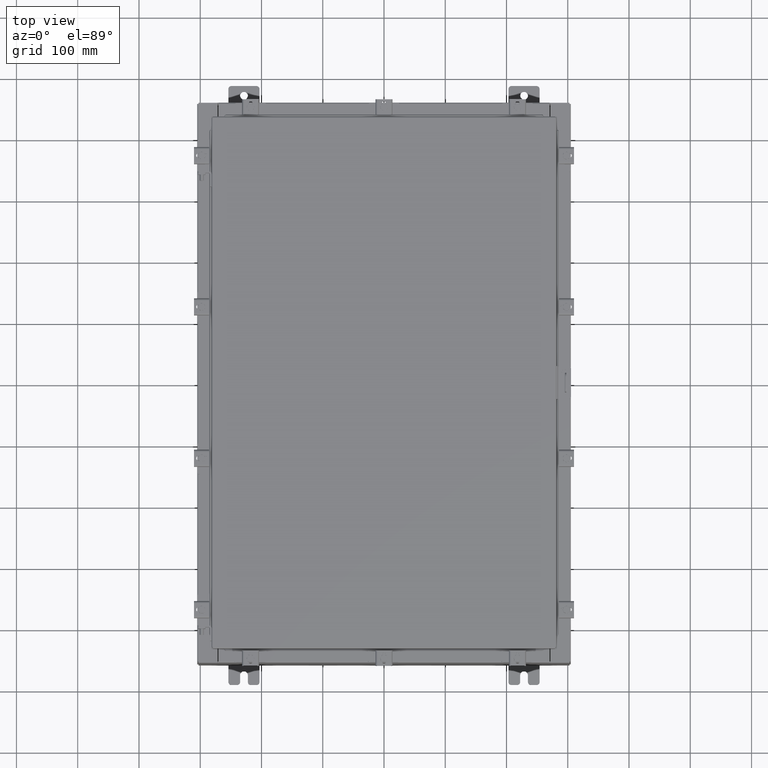
[diagram: clean part render]
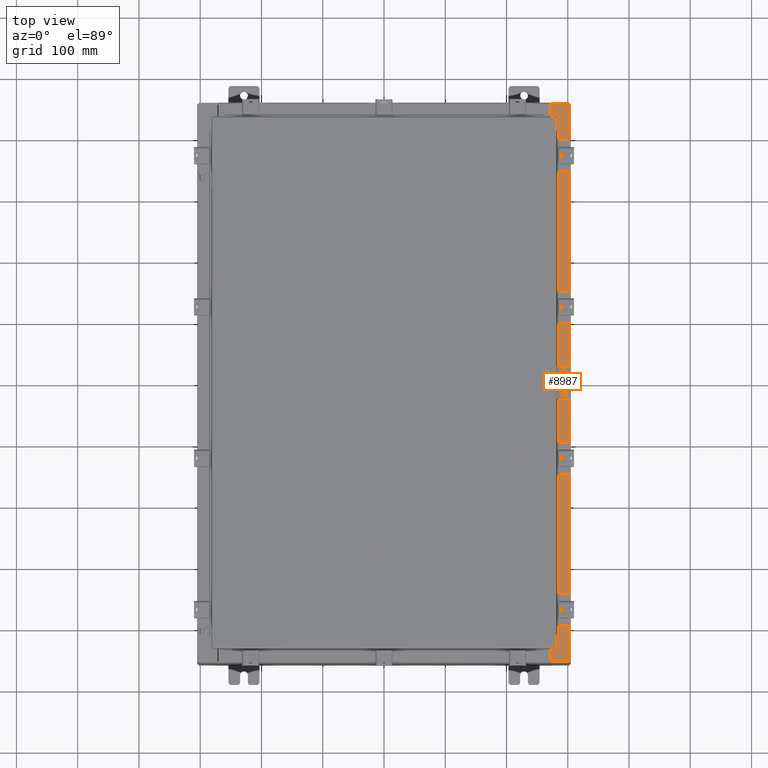
[diagram: same view with one face highlighted and labeled with its STEP entity id]
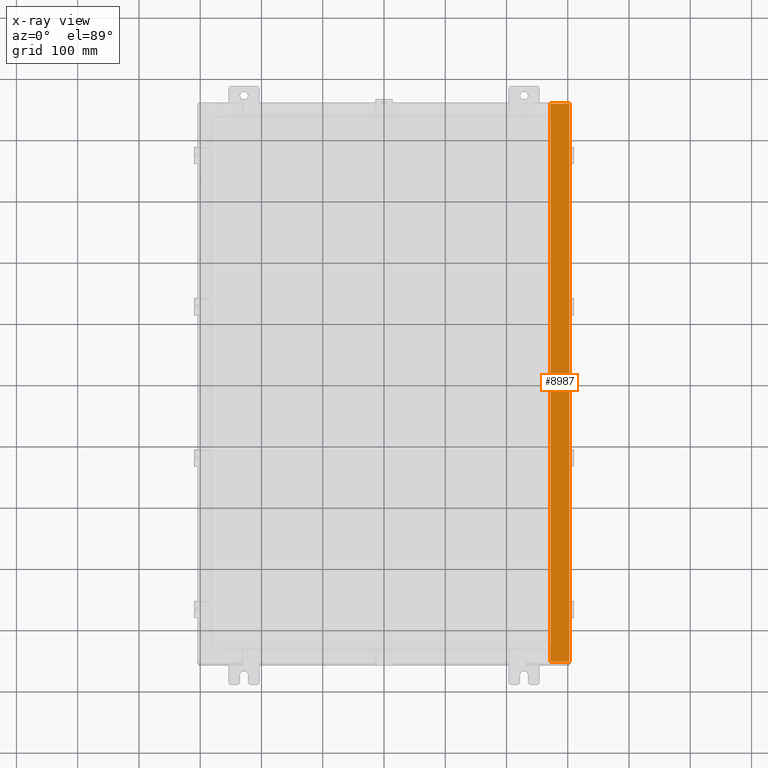
[diagram: x-ray of the same camera — body ghosted, the highlighted face saturated]
A machine part, top view. The second image highlights one B-rep face of the part: STEP entity #8987.
The next image is the same camera in x-ray: the body ghosted, the highlighted face saturated — about 0% of this face is hidden behind the body in this view.
In plain terms, the highlighted planar face has unit normal (-0, -0, -1).
Its self-contained STEP definition (entity closure, byte-faithful):
#30 = VERTEX_POINT ( 'NONE', #710 ) ;
#36 = EDGE_CURVE ( 'NONE', #12293, #19973, #12847, .T. ) ;
#100 = ORIENTED_EDGE ( 'NONE', *, *, #23315, .F. ) ;
#289 = CARTESIAN_POINT ( 'NONE',  ( 5.335691853495957800E-014, 17.92529999999999600, 9.925300000000065700 ) ) ;
#358 = VECTOR ( 'NONE', #1407, 39.37007874015748100 ) ;
#710 = CARTESIAN_POINT ( 'NONE',  ( 10.71270000000003500, -16.59374999999999600, 9.925300000000016000 ) ) ;
#865 = DIRECTION ( 'NONE',  ( -1.000000000000000000, 0.0000000000000000000, 5.349571789159789300E-015 ) ) ;
#1284 = EDGE_CURVE ( 'NONE', #20971, #4311, #9992, .T. ) ;
#1407 = DIRECTION ( 'NONE',  ( -1.000000000000000000, 0.0000000000000000000, 0.0000000000000000000 ) ) ;
#1460 = CARTESIAN_POINT ( 'NONE',  ( 10.75005000000003400, -16.59374999999999600, 9.925300000000016000 ) ) ;
#2770 = CARTESIAN_POINT ( 'NONE',  ( 10.75005000000003400, 16.61242499999999500, 9.925300000000016000 ) ) ;
#2967 = LINE ( 'NONE', #10328, #13075 ) ;
#3360 = LINE ( 'NONE', #18593, #17754 ) ;
#3367 = EDGE_CURVE ( 'NONE', #12293, #13989, #5099, .T. ) ;
#3383 = DIRECTION ( 'NONE',  ( 0.0000000000000000000, -1.000000000000000000, 6.096072018129155300E-017 ) ) ;
#3512 = CARTESIAN_POINT ( 'NONE',  ( 10.69970000000003700, 16.63109999999999600, 9.925300000000008900 ) ) ;
#3717 = VECTOR ( 'NONE', #15928, 39.37007874015748100 ) ;
#4225 = ORIENTED_EDGE ( 'NONE', *, *, #6552, .T. ) ;
#4311 = VERTEX_POINT ( 'NONE', #14881 ) ;
#4346 = DIRECTION ( 'NONE',  ( 0.0000000000000000000, -1.000000000000000000, 6.096072018129155300E-017 ) ) ;
#4367 = CARTESIAN_POINT ( 'NONE',  ( 10.69970000000003700, 6.050534360153735500E-016, 9.925300000000008900 ) ) ;
#4399 = EDGE_CURVE ( 'NONE', #30, #14489, #19879, .T. ) ;
#4424 = VECTOR ( 'NONE', #865, 39.37007874015748100 ) ;
#4579 = DIRECTION ( 'NONE',  ( 1.000000000000000000, 0.0000000000000000000, 0.0000000000000000000 ) ) ;
#4634 = LINE ( 'NONE', #1460, #358 ) ;
#4719 = EDGE_CURVE ( 'NONE', #11304, #30, #4634, .T. ) ;
#5099 = LINE ( 'NONE', #6004, #9333 ) ;
#5132 = LINE ( 'NONE', #4367, #10481 ) ;
#5201 = VECTOR ( 'NONE', #17349, 39.37007874015748100 ) ;
#5354 = CARTESIAN_POINT ( 'NONE',  ( 10.75005000000003400, 16.63109999999999300, 9.925300000000008900 ) ) ;
#5521 = CARTESIAN_POINT ( 'NONE',  ( 11.91230000000003700, 17.92529999999999600, 9.925300000000001800 ) ) ;
#5552 = ORIENTED_EDGE ( 'NONE', *, *, #8005, .F. ) ;
#5739 = DIRECTION ( 'NONE',  ( -6.096072018129156600E-017, -1.000000000000000000, 6.096072018129187400E-017 ) ) ;
#5952 = ORIENTED_EDGE ( 'NONE', *, *, #18289, .F. ) ;
#6004 = CARTESIAN_POINT ( 'NONE',  ( 11.91230000000003600, -17.92530000000000000, 9.925300000000001800 ) ) ;
#6384 = EDGE_CURVE ( 'NONE', #6429, #13989, #13294, .T. ) ;
#6429 = VERTEX_POINT ( 'NONE', #13406 ) ;
#6458 = CARTESIAN_POINT ( 'NONE',  ( 10.69970000000003700, -16.63109999999999600, 9.925300000000008900 ) ) ;
#6552 = EDGE_CURVE ( 'NONE', #20971, #6429, #5132, .T. ) ;
#6706 = FACE_OUTER_BOUND ( 'NONE', #16094, .T. ) ;
#6981 = AXIS2_PLACEMENT_3D ( 'NONE', #10643, #10711, #23353 ) ;
#7780 = ORIENTED_EDGE ( 'NONE', *, *, #36, .T. ) ;
#8005 = EDGE_CURVE ( 'NONE', #4311, #11304, #17485, .T. ) ;
#8189 = VERTEX_POINT ( 'NONE', #3512 ) ;
#8210 = EDGE_CURVE ( 'NONE', #20618, #8189, #3360, .T. ) ;
#8618 = ORIENTED_EDGE ( 'NONE', *, *, #4719, .F. ) ;
#8724 = DIRECTION ( 'NONE',  ( 1.000000000000000000, 0.0000000000000000000, 0.0000000000000000000 ) ) ;
#8751 = ORIENTED_EDGE ( 'NONE', *, *, #13937, .T. ) ;
#8987 = ADVANCED_FACE ( 'NONE', ( #6706 ), #21525, .F. ) ;
#9140 = CARTESIAN_POINT ( 'NONE',  ( 10.75005000000003400, 16.59374999999999600, 9.925300000000007100 ) ) ;
#9333 = VECTOR ( 'NONE', #5739, 39.37007874015748100 ) ;
#9992 = LINE ( 'NONE', #17546, #5201 ) ;
#10259 = VECTOR ( 'NONE', #12946, 39.37007874015748100 ) ;
#10328 = CARTESIAN_POINT ( 'NONE',  ( 10.69970000000003700, 6.050534360153735500E-016, 9.925300000000008900 ) ) ;
#10481 = VECTOR ( 'NONE', #4346, 39.37007874015748100 ) ;
#10643 = CARTESIAN_POINT ( 'NONE',  ( 5.335691853495958500E-014, 6.050534360153771000E-016, 9.925300000000065700 ) ) ;
#10711 = DIRECTION ( 'NONE',  ( -5.349571789159788500E-015, -6.096072018129155300E-017, -1.000000000000000000 ) ) ;
#11183 = CARTESIAN_POINT ( 'NONE',  ( 10.69970000000003700, 17.92529999999999600, 9.925300000000008900 ) ) ;
#11301 = CARTESIAN_POINT ( 'NONE',  ( 10.75005000000003400, -16.59374999999999600, 9.925300000000008900 ) ) ;
#11304 = VERTEX_POINT ( 'NONE', #11301 ) ;
#12042 = ORIENTED_EDGE ( 'NONE', *, *, #8210, .F. ) ;
#12225 = ORIENTED_EDGE ( 'NONE', *, *, #6384, .T. ) ;
#12293 = VERTEX_POINT ( 'NONE', #5521 ) ;
#12348 = CARTESIAN_POINT ( 'NONE',  ( 10.71270000000003500, 16.59374999999999600, 9.925300000000016000 ) ) ;
#12847 = LINE ( 'NONE', #289, #4424 ) ;
#12882 = CARTESIAN_POINT ( 'NONE',  ( 10.71270000000003500, -16.59375000000000000, 9.925300000000016000 ) ) ;
#12946 = DIRECTION ( 'NONE',  ( -0.0000000000000000000, 1.000000000000000000, -0.0000000000000000000 ) ) ;
#13075 = VECTOR ( 'NONE', #3383, 39.37007874015748100 ) ;
#13294 = LINE ( 'NONE', #16235, #3717 ) ;
#13406 = CARTESIAN_POINT ( 'NONE',  ( 10.69970000000003700, -17.92530000000000000, 9.925300000000010700 ) ) ;
#13670 = LINE ( 'NONE', #12348, #18458 ) ;
#13937 = EDGE_CURVE ( 'NONE', #19973, #8189, #2967, .T. ) ;
#13989 = VERTEX_POINT ( 'NONE', #16071 ) ;
#14119 = VERTEX_POINT ( 'NONE', #9140 ) ;
#14489 = VERTEX_POINT ( 'NONE', #19858 ) ;
#14881 = CARTESIAN_POINT ( 'NONE',  ( 10.75005000000003400, -16.63109999999999600, 9.925300000000008900 ) ) ;
#14951 = DIRECTION ( 'NONE',  ( -1.000000000000000000, 0.0000000000000000000, -8.681145560800575300E-014 ) ) ;
#15337 = ORIENTED_EDGE ( 'NONE', *, *, #3367, .F. ) ;
#15364 = DIRECTION ( 'NONE',  ( 5.349571789159788500E-015, 6.096072018129155300E-017, 1.000000000000000000 ) ) ;
#15928 = DIRECTION ( 'NONE',  ( 1.000000000000000000, 0.0000000000000000000, -5.349571789159789300E-015 ) ) ;
#16071 = CARTESIAN_POINT ( 'NONE',  ( 11.91230000000003700, -17.92530000000000000, 9.925300000000001800 ) ) ;
#16094 = EDGE_LOOP ( 'NONE', ( #22605, #4225, #12225, #15337, #7780, #8751, #12042, #5952, #100, #22471, #8618, #5552 ) ) ;
#16235 = CARTESIAN_POINT ( 'NONE',  ( 5.335691853495959100E-014, -17.92530000000000000, 9.925300000000067500 ) ) ;
#16617 = CIRCLE ( 'NONE', #19544, 0.01867499999999949400 ) ;
#17349 = DIRECTION ( 'NONE',  ( 1.000000000000000000, 0.0000000000000000000, 8.681145560800575300E-014 ) ) ;
#17485 = CIRCLE ( 'NONE', #23296, 0.01867499999999949400 ) ;
#17546 = CARTESIAN_POINT ( 'NONE',  ( 10.69970000000003700, -16.63109999999999600, 9.925300000000010700 ) ) ;
#17754 = VECTOR ( 'NONE', #14951, 39.37007874015748100 ) ;
#18289 = EDGE_CURVE ( 'NONE', #14119, #20618, #16617, .T. ) ;
#18458 = VECTOR ( 'NONE', #8724, 39.37007874015748100 ) ;
#18593 = CARTESIAN_POINT ( 'NONE',  ( 10.75005000000003400, 16.63109999999999300, 9.925300000000016000 ) ) ;
#19544 = AXIS2_PLACEMENT_3D ( 'NONE', #2770, #15364, #4579 ) ;
#19858 = CARTESIAN_POINT ( 'NONE',  ( 10.71270000000003500, 16.59374999999999600, 9.925300000000016000 ) ) ;
#19879 = LINE ( 'NONE', #12882, #10259 ) ;
#19973 = VERTEX_POINT ( 'NONE', #11183 ) ;
#20618 = VERTEX_POINT ( 'NONE', #5354 ) ;
#20971 = VERTEX_POINT ( 'NONE', #6458 ) ;
#21525 = PLANE ( 'NONE',  #6981 ) ;
#22471 = ORIENTED_EDGE ( 'NONE', *, *, #4399, .F. ) ;
#22605 = ORIENTED_EDGE ( 'NONE', *, *, #1284, .F. ) ;
#22829 = DIRECTION ( 'NONE',  ( 1.000000000000000000, 0.0000000000000000000, 0.0000000000000000000 ) ) ;
#22906 = DIRECTION ( 'NONE',  ( 5.349571789159788500E-015, 6.096072018129155300E-017, 1.000000000000000000 ) ) ;
#22985 = CARTESIAN_POINT ( 'NONE',  ( 10.75005000000003400, -16.61242499999999800, 9.925300000000016000 ) ) ;
#23296 = AXIS2_PLACEMENT_3D ( 'NONE', #22985, #22906, #22829 ) ;
#23315 = EDGE_CURVE ( 'NONE', #14489, #14119, #13670, .T. ) ;
#23353 = DIRECTION ( 'NONE',  ( -1.000000000000000000, 0.0000000000000000000, 5.349571789159788500E-015 ) ) ;